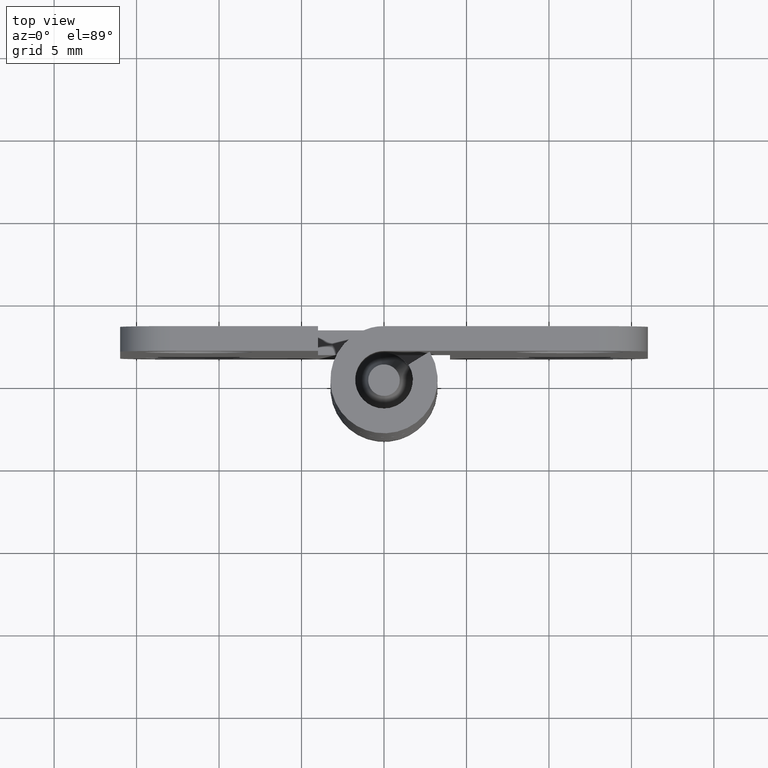
[diagram: clean part render]
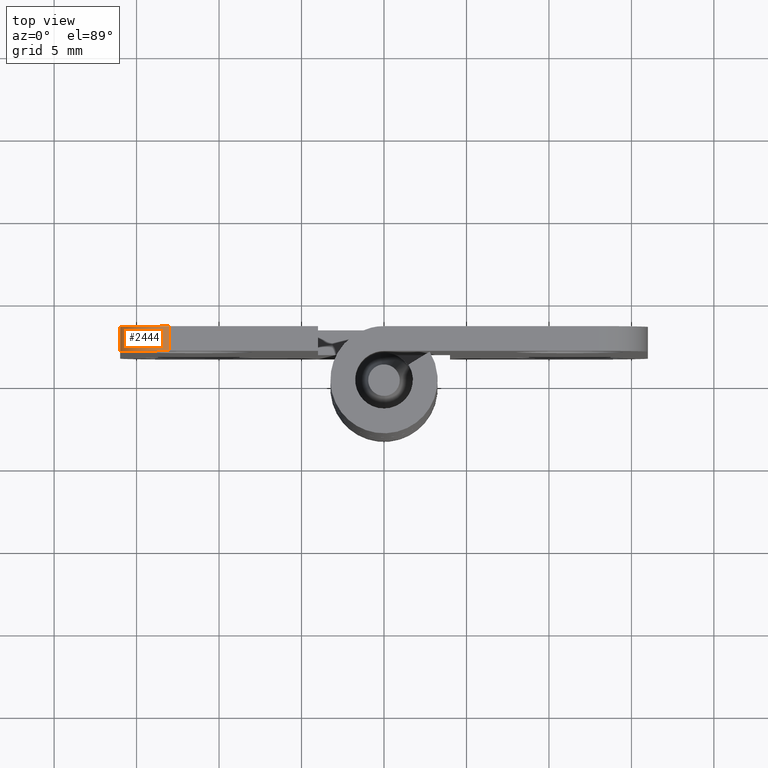
[diagram: same view with one face highlighted and labeled with its STEP entity id]
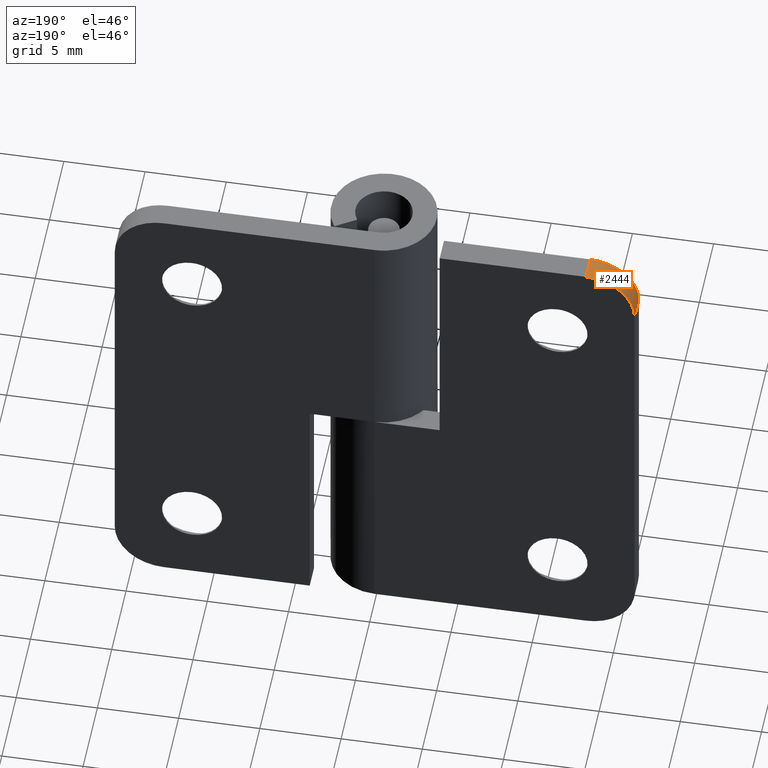
[diagram: same view with one face highlighted and labeled with its STEP entity id]
A machine part, top view. The second image highlights one B-rep face of the part: STEP entity #2444.
A second angle (auxiliary view) of the same face is appended — the face is thin or edge-on in the first view.
In plain terms, the highlighted face is a freeform B-spline surface patch.
Its self-contained STEP definition (entity closure, byte-faithful):
#2384=CARTESIAN_POINT('',(-15.997144664745569,3.287500000000001,26.869149837903990));
#2385=CARTESIAN_POINT('',(-15.997144664745569,1.711562500000000,26.869149837903990));
#2386=CARTESIAN_POINT('',(-16.143803473716535,3.287500000000001,30.228188814187202));
#2387=CARTESIAN_POINT('',(-16.143803473716535,1.711562500000000,30.228188814187202));
#2388=CARTESIAN_POINT('',(-12.789825705449143,3.287500000000001,29.992636738402076));
#2389=CARTESIAN_POINT('',(-12.789825705449143,1.711562500000000,29.992636738402076));
#2397=(BOUNDED_SURFACE()B_SPLINE_SURFACE(1,2,((#2384,#2386,#2388),(#2385,#2387,#2389)),.UNSPECIFIED.,.F.,.F.,.U.)B_SPLINE_SURFACE_WITH_KNOTS((2,2),(3,3),(0.0,1.0),(0.0,5.375227641704997),.UNSPECIFIED.)GEOMETRIC_REPRESENTATION_ITEM()RATIONAL_B_SPLINE_SURFACE(((1.0,0.664513897153982,0.996233563990329),(1.0,0.664513897153982,0.996233563990329)))REPRESENTATION_ITEM('')SURFACE());
#2398=CARTESIAN_POINT('',(-13.0,1.750000000000000,30.000008000000001));
#2399=VERTEX_POINT('',#2398);
#2400=CARTESIAN_POINT('',(-16.0,1.750000000000030,27.000008000000001));
#2401=VERTEX_POINT('',#2400);
#2402=CARTESIAN_POINT('',(-13.0,1.750000000000030,30.000008000000001));
#2403=CARTESIAN_POINT('',(-15.999999999999998,1.750000000000031,30.000008000000005));
#2404=CARTESIAN_POINT('',(-16.0,1.750000000000030,27.000008000000001));
#2412=(BOUNDED_CURVE()B_SPLINE_CURVE(2,(#2402,#2403,#2404),.UNSPECIFIED.,.F.,.U.)CURVE()GEOMETRIC_REPRESENTATION_ITEM()QUASI_UNIFORM_CURVE()RATIONAL_B_SPLINE_CURVE((1.0,0.707106781186548,1.0))REPRESENTATION_ITEM(''));
#2413=EDGE_CURVE('',#2399,#2401,#2412,.T.);
#2414=ORIENTED_EDGE('',*,*,#2413,.F.);
#2415=CARTESIAN_POINT('',(-13.0,3.250000000000000,30.000008000000001));
#2416=VERTEX_POINT('',#2415);
#2417=CARTESIAN_POINT('',(-13.0,3.250000000000000,30.000008000000001));
#2418=CARTESIAN_POINT('',(-13.0,1.750000000000000,30.000008000000001));
#2419=QUASI_UNIFORM_CURVE('',1,(#2417,#2418),.UNSPECIFIED.,.F.,.U.);
#2420=EDGE_CURVE('',#2416,#2399,#2419,.T.);
#2421=ORIENTED_EDGE('',*,*,#2420,.F.);
#2422=CARTESIAN_POINT('',(-16.0,3.250000000000000,27.000008000000001));
#2423=VERTEX_POINT('',#2422);
#2424=CARTESIAN_POINT('',(-13.0,3.250000000000000,30.000008000000001));
#2425=CARTESIAN_POINT('',(-15.999999999999998,3.250000000000000,30.000008000000005));
#2426=CARTESIAN_POINT('',(-16.0,3.250000000000000,27.000008000000001));
#2434=(BOUNDED_CURVE()B_SPLINE_CURVE(2,(#2424,#2425,#2426),.UNSPECIFIED.,.F.,.U.)CURVE()GEOMETRIC_REPRESENTATION_ITEM()QUASI_UNIFORM_CURVE()RATIONAL_B_SPLINE_CURVE((1.0,0.707106781186548,1.0))REPRESENTATION_ITEM(''));
#2435=EDGE_CURVE('',#2416,#2423,#2434,.T.);
#2436=ORIENTED_EDGE('',*,*,#2435,.T.);
#2437=CARTESIAN_POINT('',(-16.0,3.250000000000000,27.000008000000001));
#2438=CARTESIAN_POINT('',(-16.0,1.750000000000030,27.000008000000001));
#2439=QUASI_UNIFORM_CURVE('',1,(#2437,#2438),.UNSPECIFIED.,.F.,.U.);
#2440=EDGE_CURVE('',#2423,#2401,#2439,.T.);
#2441=ORIENTED_EDGE('',*,*,#2440,.T.);
#2442=EDGE_LOOP('',(#2414,#2421,#2436,#2441));
#2443=FACE_OUTER_BOUND('',#2442,.T.);
#2444=ADVANCED_FACE('',(#2443),#2397,.T.);